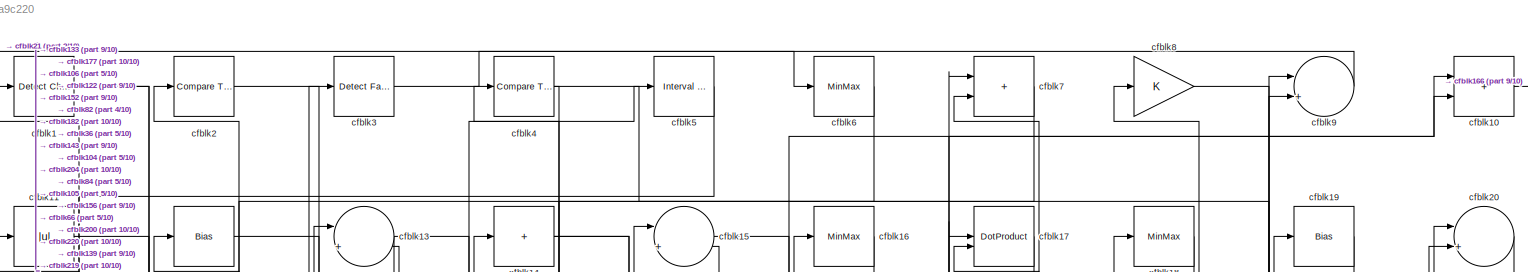
[diagram: root canvas - part 1/10, full width, top band]
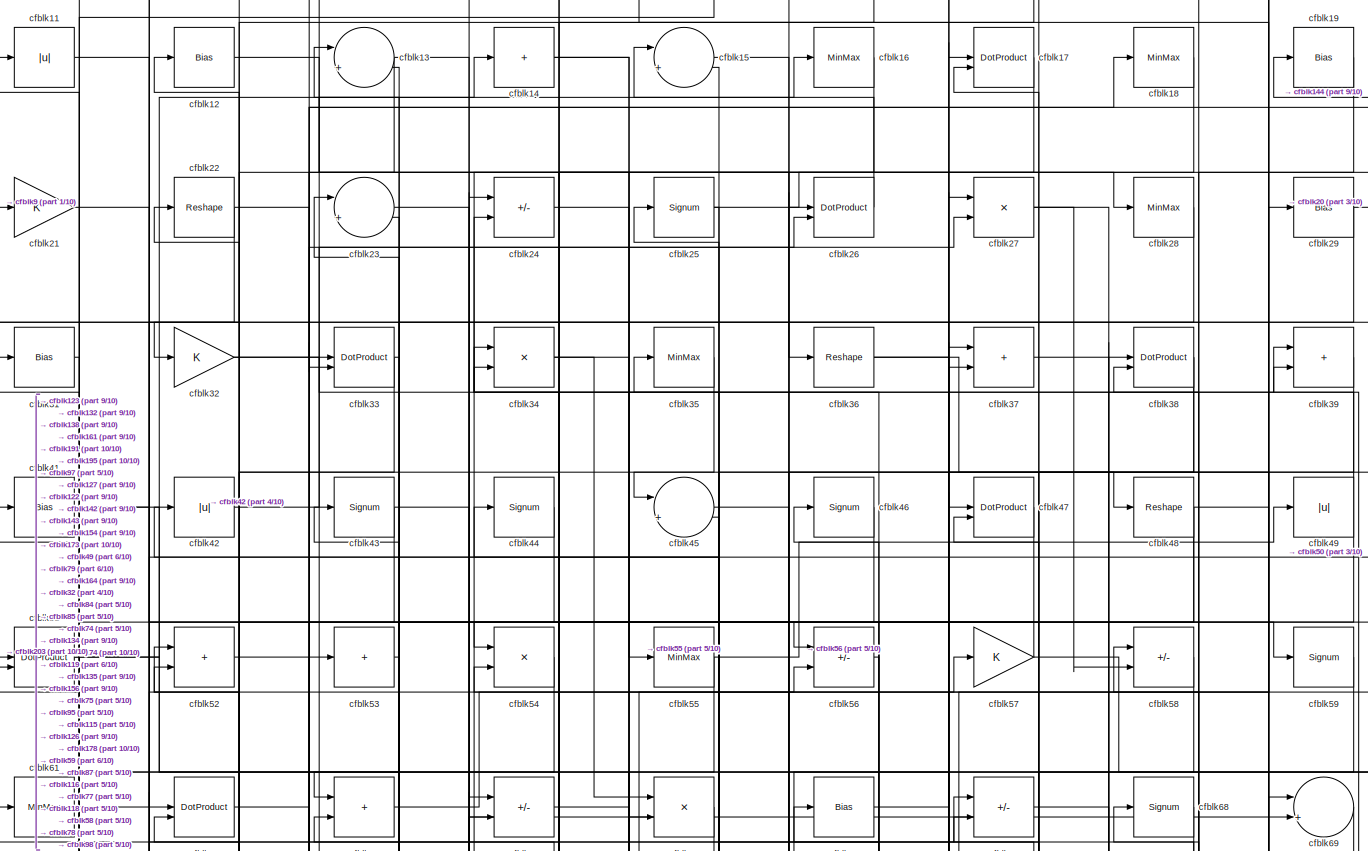
[diagram: root canvas - part 2/10, full width, top band]
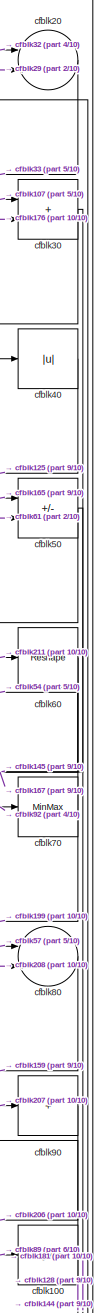
[diagram: root canvas - part 3/10, top right region]
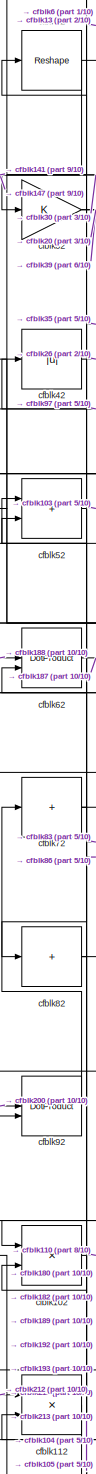
[diagram: root canvas - part 4/10, top left region]
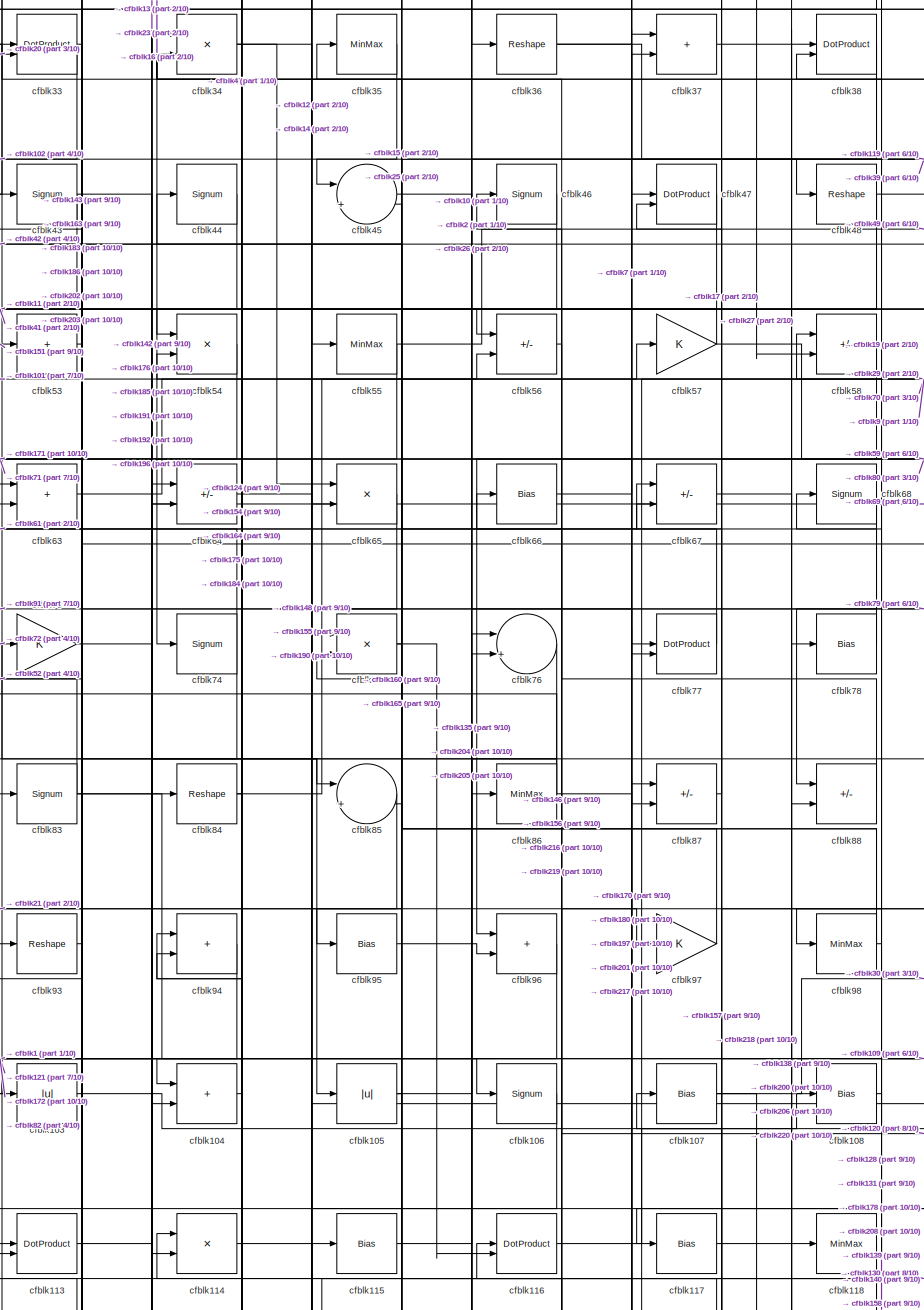
[diagram: root canvas - part 5/10, central region]
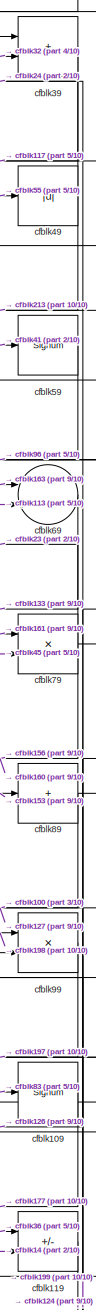
[diagram: root canvas - part 6/10, middle right region]
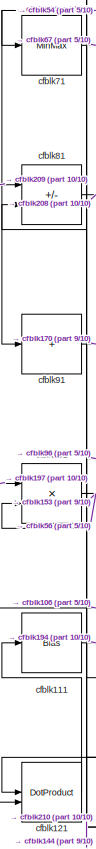
[diagram: root canvas - part 7/10, middle left region]
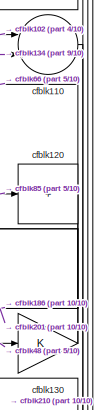
[diagram: root canvas - part 8/10, middle right region]
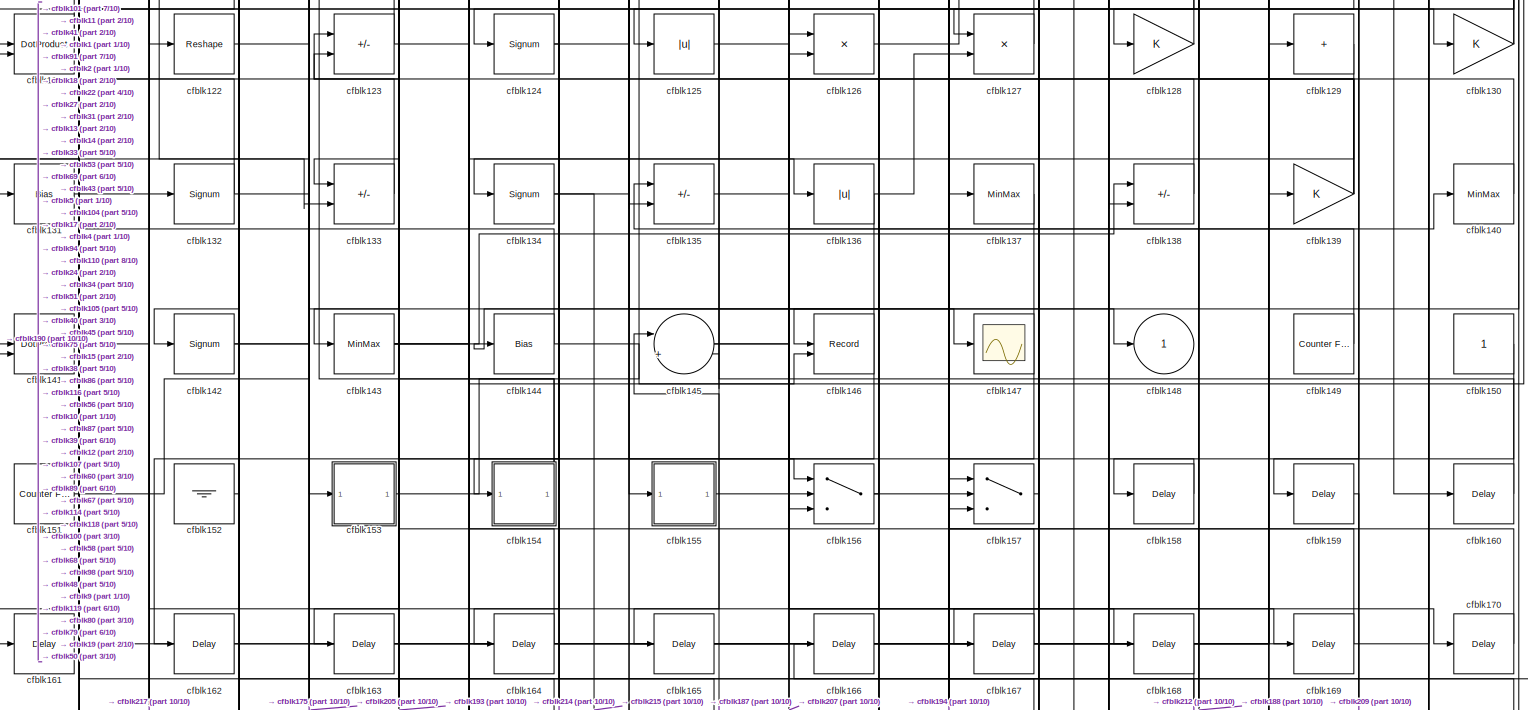
[diagram: root canvas - part 9/10, full width, middle band]
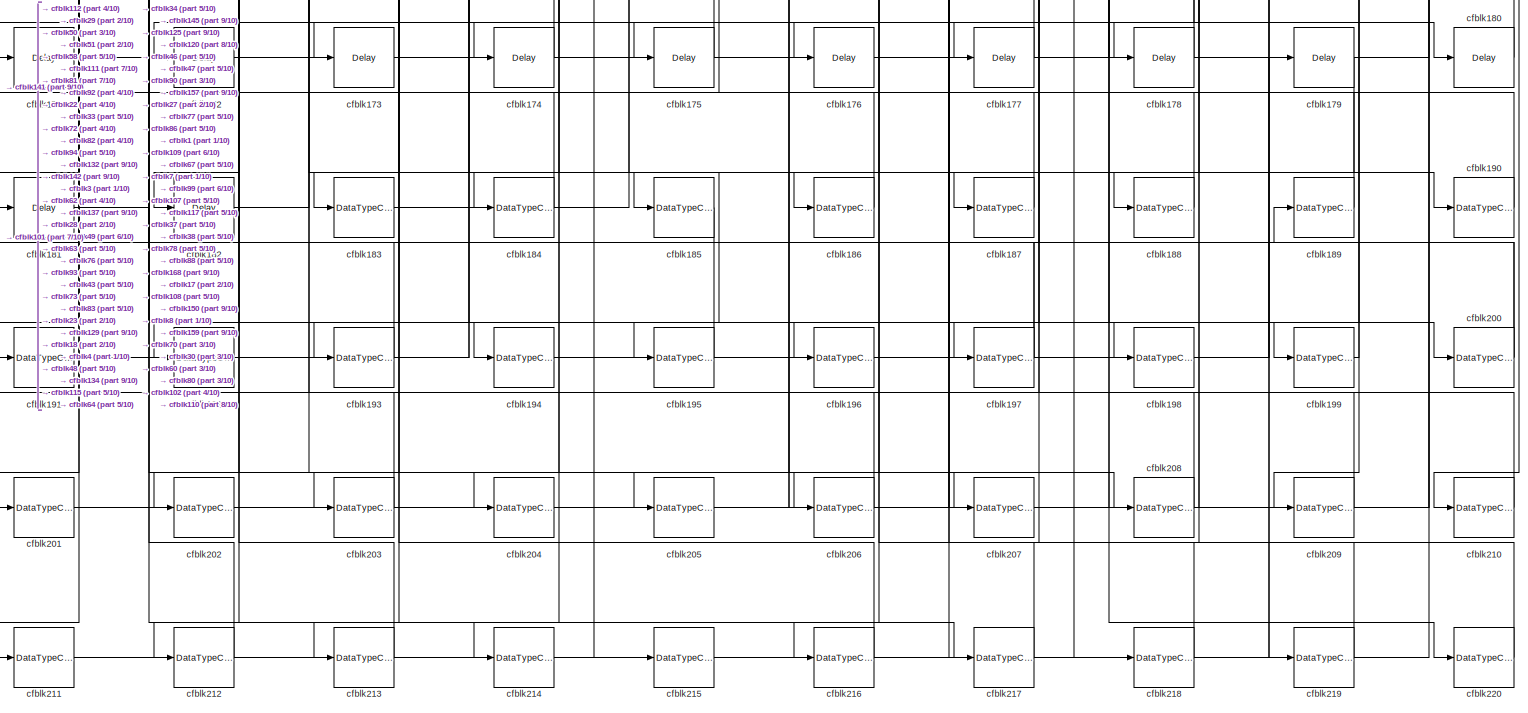
[diagram: root canvas - part 10/10, full width, bottom band]
MODEL slx_461f42a9c220
KIND model
CONFIG AbsTol = auto
CONFIG EnableMultiTasking = off
CONFIG FixedStep = auto
CONFIG MaxStep = auto
CONFIG MinStep = auto
CONFIG RelTol = 1e-3
CONFIG SampleTimeConstraint = Unconstrained
CONFIG SolverName = VariableStepAuto
CONFIG StartTime = 0.0
CONFIG StopTime = 10.0
BLOCK [Reference] cfblk1  REF=simulink/Logic and Bit
Operations/Detect
Change
  LibrarySourceBlock = hdlsllib/Logic and Bit\nOperations/Detect\nChange
  SourceBlock = simulink/Logic and Bit\nOperations/Detect\nChange
  SourceType = Detect Change
BLOCK [Sum] cfblk10
  IconShape = rectangular
BLOCK [Signum] cfblk100
BLOCK [Product] cfblk101
  Inputs = */
  RndMeth = Zero
  SaturateOnIntegerOverflow = on
BLOCK [Product] cfblk102
  Inputs = */
  RndMeth = Zero
  SaturateOnIntegerOverflow = on
BLOCK [Abs] cfblk103
  SaturateOnIntegerOverflow = off
BLOCK [Sum] cfblk104
  IconShape = rectangular
BLOCK [Abs] cfblk105
  SaturateOnIntegerOverflow = off
BLOCK [Signum] cfblk106
BLOCK [Bias] cfblk107
  Bias = 0.0
  SaturateOnIntegerOverflow = off
BLOCK [Bias] cfblk108
  Bias = 0.0
  SaturateOnIntegerOverflow = off
BLOCK [Signum] cfblk109
BLOCK [Abs] cfblk11
  SaturateOnIntegerOverflow = off
BLOCK [Sum] cfblk110
  Inputs = |++
BLOCK [Bias] cfblk111
  Bias = 0.0
  SaturateOnIntegerOverflow = off
BLOCK [Product] cfblk112
  Inputs = */
  RndMeth = Zero
  SaturateOnIntegerOverflow = on
BLOCK [DotProduct] cfblk113
  OutDataTypeStr = Inherit: Inherit via internal rule
BLOCK [Product] cfblk114
  Inputs = */
  RndMeth = Zero
  SaturateOnIntegerOverflow = on
BLOCK [Bias] cfblk115
  Bias = 0.0
  SaturateOnIntegerOverflow = off
BLOCK [DotProduct] cfblk116
  OutDataTypeStr = Inherit: Inherit via internal rule
BLOCK [Bias] cfblk117
  Bias = 0.0
  SaturateOnIntegerOverflow = off
BLOCK [MinMax] cfblk118
BLOCK [Sum] cfblk119
  IconShape = rectangular
  Inputs = +-
BLOCK [Bias] cfblk12
  Bias = 0.0
  SaturateOnIntegerOverflow = off
BLOCK [Sum] cfblk120
  IconShape = rectangular
  Inputs = +
BLOCK [DotProduct] cfblk121
  OutDataTypeStr = Inherit: Inherit via internal rule
BLOCK [Reshape] cfblk122
BLOCK [Sum] cfblk123
  IconShape = rectangular
  Inputs = +-
BLOCK [Signum] cfblk124
BLOCK [Abs] cfblk125
  SaturateOnIntegerOverflow = off
BLOCK [Product] cfblk126
  Inputs = */
  RndMeth = Zero
  SaturateOnIntegerOverflow = on
BLOCK [Product] cfblk127
  Inputs = */
  RndMeth = Zero
  SaturateOnIntegerOverflow = on
BLOCK [Gain] cfblk128
BLOCK [Sum] cfblk129
  IconShape = rectangular
  Inputs = +
BLOCK [Sum] cfblk13
  Inputs = |++
BLOCK [Gain] cfblk130
BLOCK [Bias] cfblk131
  Bias = 0.0
  SaturateOnIntegerOverflow = off
BLOCK [Signum] cfblk132
BLOCK [Sum] cfblk133
  IconShape = rectangular
  Inputs = +-
BLOCK [Signum] cfblk134
BLOCK [Sum] cfblk135
  IconShape = rectangular
  Inputs = +-
BLOCK [Abs] cfblk136
  SaturateOnIntegerOverflow = off
BLOCK [MinMax] cfblk137
BLOCK [Sum] cfblk138
  IconShape = rectangular
  Inputs = +-
BLOCK [Gain] cfblk139
BLOCK [Sum] cfblk14
  IconShape = rectangular
  Inputs = +
BLOCK [MinMax] cfblk140
BLOCK [DotProduct] cfblk141
  OutDataTypeStr = Inherit: Inherit via internal rule
BLOCK [Signum] cfblk142
BLOCK [MinMax] cfblk143
BLOCK [Bias] cfblk144
  Bias = 0.0
  SaturateOnIntegerOverflow = off
BLOCK [Sum] cfblk145
  Inputs = |++
BLOCK [Record] cfblk146
  CompatibilityTag = XY
  FileSettingsInternal = {"entries":[{"content":{"excelSettings":{"content":{},"type":"Streamout.ExcelSettings"}},"type":"Streamout.FileSettingStorage","uuid":""}],"packageUris":["http:\/\/schema.mathworks.com\/mf0\/streamout_blocks\/R2020a"],"version":"1.0"}
  Layout = [1 1]
  SignalsInternal = {"entries":[{"content":{"signals":[{"content":{"blockPath":[],"dimensions":[1],"domain":"","lineColor":"#a2142f","plots":[1],"port":1,"signalID":5132,"signalName":"XY Graph:1"},"type":"RecordBlkView.Signal","uuid":""},{"content":{"blockPath":[],"dimensions":[1],"domain":"","lineColor":"#139fff","plots":[1],"port":2,"signalID":5135,"signalName":"XY Graph:2"},"type":"RecordBlkView.Signal","uuid":""}...<+146ch>
  VisualizationBindings = {"xyplotplugin":{"info":[{"series":[{"bindingParametersList":[{"parameter":"X-Axis","signalID":5132,"signalName":"XY Graph:1"},{"parameter":"Y-Axis","signalID":5135,"signalName":"XY Graph:2"}],"seriesID":65422}],"subplotID":1}]}}
  st = -1
BLOCK [Scope] cfblk147
  Floating = off
  NumInputPorts = 1
  ScopeSpecificationString = Simulink.scopes.TimeScopeBlockCfg('CurrentConfiguration', extmgr.ConfigurationSet(extmgr.Configuration('Core','General UI',true),extmgr.Configuration('Core','Source UI',true),extmgr.Configuration('Sources','WiredSimulink',true,'DataLoggingVariableName','ScopeData2','DataLoggingSaveFormat','Array','DataLoggingLimitDataPoints',true,'DataLoggingDecimation','1'),extmgr.Configuration('Visuals','Time Do...<+868ch>
BLOCK [Outport] cfblk148
  VectorParamsAs1DForOutWhenUnconnected = off
BLOCK [Reference] cfblk149  REF=hdlsllib/Sources/Counter
Free-Running
  SourceBlock = hdlsllib/Sources/Counter\nFree-Running
  SourceType = Counter Free-Running
BLOCK [Sum] cfblk15
  Inputs = |++
BLOCK [Constant] cfblk150
  SampleTime = -1
BLOCK [Reference] cfblk151  REF=hdlsllib/Sources/Counter
Free-Running
  SourceBlock = hdlsllib/Sources/Counter\nFree-Running
  SourceType = Counter Free-Running
BLOCK [Ground] cfblk152
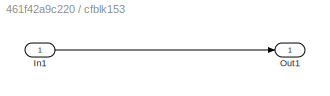
BLOCK [SubSystem] cfblk153
  LibrarySourceBlock = hdlsllib/Ports &\nSubsystems/Subsystem
BLOCK [Inport] cfblk153/In1
BLOCK [Outport] cfblk153/Out1
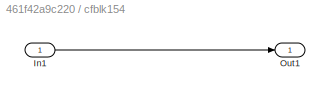
BLOCK [SubSystem] cfblk154
  LibrarySourceBlock = hdlsllib/Ports &\nSubsystems/Subsystem
BLOCK [Inport] cfblk154/In1
BLOCK [Outport] cfblk154/Out1
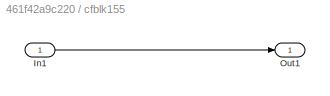
BLOCK [SubSystem] cfblk155
  LibrarySourceBlock = hdlsllib/Ports &\nSubsystems/Subsystem
BLOCK [Inport] cfblk155/In1
BLOCK [Outport] cfblk155/Out1
BLOCK [Switch] cfblk156
  InputSameDT = off
  SaturateOnIntegerOverflow = off
BLOCK [Switch] cfblk157
  InputSameDT = off
  SaturateOnIntegerOverflow = off
BLOCK [Delay] cfblk158
  InputPortMap = u0
  SampleTime = 1
BLOCK [Delay] cfblk159
  InputPortMap = u0
  SampleTime = 1
BLOCK [MinMax] cfblk16
BLOCK [Delay] cfblk160
  InputPortMap = u0
  SampleTime = 1
BLOCK [Delay] cfblk161
  InputPortMap = u0
  SampleTime = 1
BLOCK [Delay] cfblk162
  InputPortMap = u0
  SampleTime = 1
BLOCK [Delay] cfblk163
  InputPortMap = u0
  SampleTime = 1
BLOCK [Delay] cfblk164
  InputPortMap = u0
  SampleTime = 1
BLOCK [Delay] cfblk165
  InputPortMap = u0
  SampleTime = 1
BLOCK [Delay] cfblk166
  InputPortMap = u0
  SampleTime = 1
BLOCK [Delay] cfblk167
  InputPortMap = u0
  SampleTime = 1
BLOCK [Delay] cfblk168
  InputPortMap = u0
  SampleTime = 1
BLOCK [Delay] cfblk169
  InputPortMap = u0
  SampleTime = 1
BLOCK [DotProduct] cfblk17
  OutDataTypeStr = Inherit: Inherit via internal rule
BLOCK [Delay] cfblk170
  InputPortMap = u0
  SampleTime = 1
BLOCK [Delay] cfblk171
  InputPortMap = u0
  SampleTime = 1
BLOCK [Delay] cfblk172
  InputPortMap = u0
  SampleTime = 1
BLOCK [Delay] cfblk173
  InputPortMap = u0
  SampleTime = 1
BLOCK [Delay] cfblk174
  InputPortMap = u0
  SampleTime = 1
BLOCK [Delay] cfblk175
  InputPortMap = u0
  SampleTime = 1
BLOCK [Delay] cfblk176
  InputPortMap = u0
  SampleTime = 1
BLOCK [Delay] cfblk177
  InputPortMap = u0
  SampleTime = 1
BLOCK [Delay] cfblk178
  InputPortMap = u0
  SampleTime = 1
BLOCK [Delay] cfblk179
  InputPortMap = u0
  SampleTime = 1
BLOCK [MinMax] cfblk18
BLOCK [Delay] cfblk180
  InputPortMap = u0
  SampleTime = 1
BLOCK [Delay] cfblk181
  InputPortMap = u0
  SampleTime = 1
BLOCK [Delay] cfblk182
  InputPortMap = u0
  SampleTime = 1
BLOCK [DataTypeConversion] cfblk183
  OutDataTypeStr = uint8
  RndMeth = Floor
  SaturateOnIntegerOverflow = off
BLOCK [DataTypeConversion] cfblk184
  OutDataTypeStr = uint8
  RndMeth = Floor
  SaturateOnIntegerOverflow = off
BLOCK [DataTypeConversion] cfblk185
  OutDataTypeStr = uint8
  RndMeth = Floor
  SaturateOnIntegerOverflow = off
BLOCK [DataTypeConversion] cfblk186
  OutDataTypeStr = uint8
  RndMeth = Floor
  SaturateOnIntegerOverflow = off
BLOCK [DataTypeConversion] cfblk187
  OutDataTypeStr = uint8
  RndMeth = Floor
  SaturateOnIntegerOverflow = off
BLOCK [DataTypeConversion] cfblk188
  OutDataTypeStr = uint8
  RndMeth = Floor
  SaturateOnIntegerOverflow = off
BLOCK [DataTypeConversion] cfblk189
  OutDataTypeStr = uint8
  RndMeth = Floor
  SaturateOnIntegerOverflow = off
BLOCK [Bias] cfblk19
  Bias = 0.0
  SaturateOnIntegerOverflow = off
BLOCK [DataTypeConversion] cfblk190
  OutDataTypeStr = uint8
  RndMeth = Floor
  SaturateOnIntegerOverflow = off
BLOCK [DataTypeConversion] cfblk191
  OutDataTypeStr = uint8
  RndMeth = Floor
  SaturateOnIntegerOverflow = off
BLOCK [DataTypeConversion] cfblk192
  OutDataTypeStr = uint8
  RndMeth = Floor
  SaturateOnIntegerOverflow = off
BLOCK [DataTypeConversion] cfblk193
  OutDataTypeStr = uint8
  RndMeth = Floor
  SaturateOnIntegerOverflow = off
BLOCK [DataTypeConversion] cfblk194
  OutDataTypeStr = uint8
  RndMeth = Floor
  SaturateOnIntegerOverflow = off
BLOCK [DataTypeConversion] cfblk195
  OutDataTypeStr = uint8
  RndMeth = Floor
  SaturateOnIntegerOverflow = off
BLOCK [DataTypeConversion] cfblk196
  OutDataTypeStr = uint8
  RndMeth = Floor
  SaturateOnIntegerOverflow = off
BLOCK [DataTypeConversion] cfblk197
  RndMeth = Floor
  SaturateOnIntegerOverflow = off
BLOCK [DataTypeConversion] cfblk198
  OutDataTypeStr = uint8
  RndMeth = Floor
  SaturateOnIntegerOverflow = off
BLOCK [DataTypeConversion] cfblk199
  OutDataTypeStr = uint8
  RndMeth = Floor
  SaturateOnIntegerOverflow = off
BLOCK [Reference] cfblk2  REF=hdlsllib/Logic and Bit
Operations/Compare
To Constant
  SourceBlock = hdlsllib/Logic and Bit\nOperations/Compare\nTo Constant
  SourceType = Compare To Constant
BLOCK [Sum] cfblk20
  Inputs = |++
BLOCK [DataTypeConversion] cfblk200
  RndMeth = Floor
  SaturateOnIntegerOverflow = off
BLOCK [DataTypeConversion] cfblk201
  OutDataTypeStr = uint8
  RndMeth = Floor
  SaturateOnIntegerOverflow = off
BLOCK [DataTypeConversion] cfblk202
  OutDataTypeStr = uint8
  RndMeth = Floor
  SaturateOnIntegerOverflow = off
BLOCK [DataTypeConversion] cfblk203
  OutDataTypeStr = uint8
  RndMeth = Floor
  SaturateOnIntegerOverflow = off
BLOCK [DataTypeConversion] cfblk204
  OutDataTypeStr = uint8
  RndMeth = Floor
  SaturateOnIntegerOverflow = off
BLOCK [DataTypeConversion] cfblk205
  OutDataTypeStr = uint8
  RndMeth = Floor
  SaturateOnIntegerOverflow = off
BLOCK [DataTypeConversion] cfblk206
  RndMeth = Floor
  SaturateOnIntegerOverflow = off
BLOCK [DataTypeConversion] cfblk207
  OutDataTypeStr = uint8
  RndMeth = Floor
  SaturateOnIntegerOverflow = off
BLOCK [DataTypeConversion] cfblk208
  RndMeth = Floor
  SaturateOnIntegerOverflow = off
BLOCK [DataTypeConversion] cfblk209
  OutDataTypeStr = uint8
  RndMeth = Floor
  SaturateOnIntegerOverflow = off
BLOCK [Gain] cfblk21
BLOCK [DataTypeConversion] cfblk210
  OutDataTypeStr = uint8
  RndMeth = Floor
  SaturateOnIntegerOverflow = off
BLOCK [DataTypeConversion] cfblk211
  OutDataTypeStr = uint8
  RndMeth = Floor
  SaturateOnIntegerOverflow = off
BLOCK [DataTypeConversion] cfblk212
  OutDataTypeStr = uint8
  RndMeth = Floor
  SaturateOnIntegerOverflow = off
BLOCK [DataTypeConversion] cfblk213
  OutDataTypeStr = uint8
  RndMeth = Floor
  SaturateOnIntegerOverflow = off
BLOCK [DataTypeConversion] cfblk214
  OutDataTypeStr = uint8
  RndMeth = Floor
  SaturateOnIntegerOverflow = off
BLOCK [DataTypeConversion] cfblk215
  OutDataTypeStr = uint8
  RndMeth = Floor
  SaturateOnIntegerOverflow = off
BLOCK [DataTypeConversion] cfblk216
  OutDataTypeStr = uint8
  RndMeth = Floor
  SaturateOnIntegerOverflow = off
BLOCK [DataTypeConversion] cfblk217
  OutDataTypeStr = uint8
  RndMeth = Floor
  SaturateOnIntegerOverflow = off
BLOCK [DataTypeConversion] cfblk218
  OutDataTypeStr = uint8
  RndMeth = Floor
  SaturateOnIntegerOverflow = off
BLOCK [DataTypeConversion] cfblk219
  OutDataTypeStr = uint8
  RndMeth = Floor
  SaturateOnIntegerOverflow = off
BLOCK [Reshape] cfblk22
BLOCK [DataTypeConversion] cfblk220
  OutDataTypeStr = uint8
  RndMeth = Floor
  SaturateOnIntegerOverflow = off
BLOCK [Sum] cfblk23
  Inputs = |++
BLOCK [Sum] cfblk24
  IconShape = rectangular
  Inputs = +-
BLOCK [Signum] cfblk25
BLOCK [DotProduct] cfblk26
  OutDataTypeStr = Inherit: Inherit via internal rule
BLOCK [Product] cfblk27
  Inputs = */
  RndMeth = Zero
  SaturateOnIntegerOverflow = on
BLOCK [MinMax] cfblk28
BLOCK [Bias] cfblk29
  Bias = 0.0
  SaturateOnIntegerOverflow = off
BLOCK [Reference] cfblk3  REF=hdlsllib/Logic and Bit
Operations/Detect Fall
Nonpositive
  SourceBlock = hdlsllib/Logic and Bit\nOperations/Detect Fall\nNonpositive
  SourceType = Detect Fall Nonpositive
BLOCK [Sum] cfblk30
  IconShape = rectangular
BLOCK [Bias] cfblk31
  Bias = 0.0
  SaturateOnIntegerOverflow = off
BLOCK [Gain] cfblk32
BLOCK [DotProduct] cfblk33
  OutDataTypeStr = Inherit: Inherit via internal rule
BLOCK [Product] cfblk34
  Inputs = */
  RndMeth = Zero
  SaturateOnIntegerOverflow = on
BLOCK [MinMax] cfblk35
BLOCK [Reshape] cfblk36
BLOCK [Sum] cfblk37
  IconShape = rectangular
BLOCK [DotProduct] cfblk38
  OutDataTypeStr = Inherit: Inherit via internal rule
BLOCK [Sum] cfblk39
  IconShape = rectangular
BLOCK [Reference] cfblk4  REF=hdlsllib/Logic and Bit
Operations/Compare
To Constant
  SourceBlock = hdlsllib/Logic and Bit\nOperations/Compare\nTo Constant
  SourceType = Compare To Constant
BLOCK [Abs] cfblk40
  SaturateOnIntegerOverflow = off
BLOCK [Bias] cfblk41
  Bias = 0.0
  SaturateOnIntegerOverflow = off
BLOCK [Abs] cfblk42
  SaturateOnIntegerOverflow = off
BLOCK [Signum] cfblk43
BLOCK [Signum] cfblk44
BLOCK [Sum] cfblk45
  Inputs = |++
BLOCK [Signum] cfblk46
BLOCK [DotProduct] cfblk47
  OutDataTypeStr = Inherit: Inherit via internal rule
BLOCK [Reshape] cfblk48
BLOCK [Abs] cfblk49
  SaturateOnIntegerOverflow = off
BLOCK [Reference] cfblk5  REF=hdlsllib/Logic and Bit
Operations/Interval Test
  SourceBlock = hdlsllib/Logic and Bit\nOperations/Interval Test
  SourceType = Interval Test
BLOCK [Sum] cfblk50
  IconShape = rectangular
  Inputs = +-
BLOCK [DotProduct] cfblk51
  OutDataTypeStr = Inherit: Inherit via internal rule
BLOCK [Sum] cfblk52
  IconShape = rectangular
BLOCK [Sum] cfblk53
  IconShape = rectangular
  Inputs = +
BLOCK [Product] cfblk54
  Inputs = */
  RndMeth = Zero
  SaturateOnIntegerOverflow = on
BLOCK [MinMax] cfblk55
BLOCK [Sum] cfblk56
  IconShape = rectangular
  Inputs = +-
BLOCK [Gain] cfblk57
BLOCK [Sum] cfblk58
  IconShape = rectangular
  Inputs = +-
BLOCK [Signum] cfblk59
BLOCK [MinMax] cfblk6
BLOCK [Reshape] cfblk60
BLOCK [MinMax] cfblk61
BLOCK [DotProduct] cfblk62
  OutDataTypeStr = Inherit: Inherit via internal rule
BLOCK [Sum] cfblk63
  IconShape = rectangular
BLOCK [Sum] cfblk64
  IconShape = rectangular
  Inputs = +-
BLOCK [Product] cfblk65
  Inputs = */
  RndMeth = Zero
  SaturateOnIntegerOverflow = on
BLOCK [Bias] cfblk66
  Bias = 0.0
  SaturateOnIntegerOverflow = off
BLOCK [Sum] cfblk67
  IconShape = rectangular
  Inputs = +-
BLOCK [Signum] cfblk68
BLOCK [Sum] cfblk69
  Inputs = |++
BLOCK [Sum] cfblk7
  IconShape = rectangular
BLOCK [MinMax] cfblk70
BLOCK [MinMax] cfblk71
BLOCK [Sum] cfblk72
  IconShape = rectangular
  Inputs = +
BLOCK [Gain] cfblk73
BLOCK [Signum] cfblk74
BLOCK [Product] cfblk75
  Inputs = */
  RndMeth = Zero
  SaturateOnIntegerOverflow = on
BLOCK [Sum] cfblk76
  Inputs = |++
BLOCK [DotProduct] cfblk77
  OutDataTypeStr = Inherit: Inherit via internal rule
BLOCK [Bias] cfblk78
  Bias = 0.0
  SaturateOnIntegerOverflow = off
BLOCK [Product] cfblk79
  Inputs = */
  RndMeth = Zero
  SaturateOnIntegerOverflow = on
BLOCK [Gain] cfblk8
BLOCK [Sum] cfblk80
  Inputs = |++
BLOCK [Sum] cfblk81
  IconShape = rectangular
  Inputs = +-
BLOCK [Sum] cfblk82
  IconShape = rectangular
  Inputs = +
BLOCK [Signum] cfblk83
BLOCK [Reshape] cfblk84
BLOCK [Sum] cfblk85
  Inputs = |++
BLOCK [MinMax] cfblk86
BLOCK [Sum] cfblk87
  IconShape = rectangular
  Inputs = +-
BLOCK [Sum] cfblk88
  IconShape = rectangular
  Inputs = +-
BLOCK [Sum] cfblk89
  IconShape = rectangular
  Inputs = +
BLOCK [Sum] cfblk9
  Inputs = |++
BLOCK [Sum] cfblk90
  IconShape = rectangular
  Inputs = +
BLOCK [Sum] cfblk91
  IconShape = rectangular
  Inputs = +
BLOCK [DotProduct] cfblk92
  OutDataTypeStr = Inherit: Inherit via internal rule
BLOCK [Reshape] cfblk93
BLOCK [Sum] cfblk94
  IconShape = rectangular
BLOCK [Bias] cfblk95
  Bias = 0.0
  SaturateOnIntegerOverflow = off
BLOCK [Sum] cfblk96
  IconShape = rectangular
BLOCK [Gain] cfblk97
BLOCK [MinMax] cfblk98
BLOCK [Product] cfblk99
  Inputs = */
  RndMeth = Zero
  SaturateOnIntegerOverflow = on
NET cfblk100:1 -> cfblk128:1, cfblk40:1
NET cfblk101:1 -> cfblk153:1, cfblk56:2
LINE cfblk102:1 -> cfblk110:1
LINE cfblk103:1 -> cfblk108:1
LINE cfblk104:1 -> cfblk164:1
NET cfblk105:1 -> cfblk10:2, cfblk165:1
LINE cfblk106:1 -> cfblk121:2
NET cfblk107:1 -> cfblk218:1, cfblk30:1
LINE cfblk108:1 -> cfblk178:1
LINE cfblk109:1 -> cfblk177:1
LINE cfblk10:1 -> cfblk166:1
LINE cfblk110:1 -> cfblk210:1
LINE cfblk111:1 -> cfblk194:1
LINE cfblk112:1 -> cfblk211:1
LINE cfblk113:1 -> cfblk69:2
LINE cfblk114:1 -> cfblk148:1
LINE cfblk115:1 -> cfblk26:1
LINE cfblk116:1 -> cfblk29:1
LINE cfblk117:1 -> cfblk220:1
LINE cfblk118:1 -> cfblk131:1
LINE cfblk119:1 -> cfblk124:1
LINE cfblk11:1 -> cfblk56:1
NET cfblk120:1 -> cfblk186:1, cfblk201:1, cfblk66:1
LINE cfblk121:1 -> cfblk111:1
LINE cfblk122:1 -> cfblk27:2
NET cfblk123:1 -> cfblk136:1, cfblk31:1
NET cfblk124:1 -> cfblk75:1, cfblk94:1
LINE cfblk125:1 -> cfblk207:1
LINE cfblk126:1 -> cfblk39:1
LINE cfblk127:1 -> cfblk12:1
LINE cfblk128:1 -> cfblk114:1
LINE cfblk129:1 -> cfblk214:1
LINE cfblk12:1 -> cfblk55:1
NET cfblk130:1 -> cfblk120:1, cfblk85:2
LINE cfblk131:1 -> cfblk132:1
NET cfblk132:1 -> cfblk205:1, cfblk41:1
LINE cfblk133:1 -> cfblk123:1
NET cfblk134:1 -> cfblk110:2, cfblk215:1
LINE cfblk135:1 -> cfblk86:1
NET cfblk136:1 -> cfblk127:2, cfblk162:1
LINE cfblk137:1 -> cfblk193:1
LINE cfblk138:1 -> cfblk11:1
NET cfblk139:1 -> cfblk58:1, cfblk75:2, cfblk94:2
NET cfblk13:1 -> cfblk32:1, cfblk85:1
LINE cfblk140:1 -> cfblk68:1
LINE cfblk141:1 -> cfblk217:1
NET cfblk142:1 -> cfblk175:1, cfblk18:1
NET cfblk143:1 -> cfblk138:1, cfblk13:2, cfblk146:2, cfblk5:1
NET cfblk144:1 -> cfblk101:2, cfblk19:1
NET cfblk145:1 -> cfblk168:1, cfblk169:1
LINE cfblk149:1 -> cfblk135:1
NET cfblk14:1 -> cfblk119:2, cfblk77:2
LINE cfblk150:1 -> cfblk188:1
LINE cfblk151:1 -> cfblk53:1
LINE cfblk152:1 -> cfblk2:1
LINE cfblk153/In1:1 -> cfblk153/Out1:1
LINE cfblk153:1 -> cfblk89:1
LINE cfblk154/In1:1 -> cfblk154/Out1:1
NET cfblk154:1 -> cfblk13:1, cfblk14:1
LINE cfblk155/In1:1 -> cfblk155/Out1:1
LINE cfblk155:1 -> cfblk140:1
NET cfblk156:1 -> cfblk10:1, cfblk116:1
LINE cfblk157:1 -> cfblk107:1
LINE cfblk158:1 -> cfblk157:2
LINE cfblk159:1 -> cfblk209:1
LINE cfblk15:1 -> cfblk126:1
LINE cfblk160:1 -> cfblk45:2
LINE cfblk161:1 -> cfblk79:1
LINE cfblk162:1 -> cfblk126:2
LINE cfblk163:1 -> cfblk69:1
LINE cfblk164:1 -> cfblk24:1
LINE cfblk165:1 -> cfblk50:1
LINE cfblk166:1 -> cfblk9:1
LINE cfblk167:1 -> cfblk157:1
LINE cfblk168:1 -> cfblk212:1
LINE cfblk169:1 -> cfblk123:2
LINE cfblk16:1 -> cfblk74:1
LINE cfblk170:1 -> cfblk87:1
LINE cfblk171:1 -> cfblk38:1
LINE cfblk172:1 -> cfblk88:2
LINE cfblk173:1 -> cfblk27:1
LINE cfblk174:1 -> cfblk23:1
LINE cfblk175:1 -> cfblk34:2
LINE cfblk176:1 -> cfblk30:2
LINE cfblk177:1 -> cfblk1:1
LINE cfblk178:1 -> cfblk17:1
LINE cfblk179:1 -> cfblk195:1
LINE cfblk17:1 -> cfblk134:1
LINE cfblk180:1 -> cfblk102:2
LINE cfblk181:1 -> cfblk198:1
LINE cfblk182:1 -> cfblk3:1
LINE cfblk183:1 -> cfblk115:1
LINE cfblk184:1 -> cfblk93:1
LINE cfblk185:1 -> cfblk189:1
LINE cfblk186:1 -> cfblk73:1
LINE cfblk187:1 -> cfblk145:1
LINE cfblk188:1 -> cfblk62:1
LINE cfblk189:1 -> cfblk62:2
LINE cfblk18:1 -> cfblk174:1
LINE cfblk190:1 -> cfblk141:1
LINE cfblk191:1 -> cfblk64:1
LINE cfblk192:1 -> cfblk64:2
LINE cfblk193:1 -> cfblk22:1
LINE cfblk194:1 -> cfblk137:1
LINE cfblk195:1 -> cfblk51:2
LINE cfblk196:1 -> cfblk179:1
NET cfblk197:1 -> cfblk101:1, cfblk77:1
LINE cfblk198:1 -> cfblk99:1
LINE cfblk199:1 -> cfblk99:2
LINE cfblk19:1 -> cfblk98:1
NET cfblk1:1 -> cfblk106:1, cfblk122:1
NET cfblk200:1 -> cfblk7:2, cfblk92:1
LINE cfblk201:1 -> cfblk37:1
LINE cfblk202:1 -> cfblk37:2
LINE cfblk203:1 -> cfblk51:1
LINE cfblk204:1 -> cfblk76:1
LINE cfblk205:1 -> cfblk76:2
NET cfblk206:1 -> cfblk33:1, cfblk78:1
LINE cfblk207:1 -> cfblk90:1
NET cfblk208:1 -> cfblk38:2, cfblk67:2, cfblk80:2
LINE cfblk209:1 -> cfblk81:1
LINE cfblk20:1 -> cfblk33:2
LINE cfblk210:1 -> cfblk81:2
LINE cfblk211:1 -> cfblk60:1
LINE cfblk212:1 -> cfblk112:1
LINE cfblk213:1 -> cfblk112:2
LINE cfblk214:1 -> cfblk157:3
LINE cfblk215:1 -> cfblk129:1
LINE cfblk216:1 -> cfblk63:2
LINE cfblk217:1 -> cfblk47:1
LINE cfblk218:1 -> cfblk47:2
LINE cfblk219:1 -> cfblk46:1
LINE cfblk21:1 -> cfblk97:1
LINE cfblk220:1 -> cfblk8:1
NET cfblk22:1 -> cfblk141:2, cfblk147:1
LINE cfblk23:1 -> cfblk84:1
LINE cfblk24:1 -> cfblk156:1
NET cfblk25:1 -> cfblk28:1, cfblk95:1
LINE cfblk26:1 -> cfblk15:1
NET cfblk27:1 -> cfblk118:1, cfblk58:2
LINE cfblk28:1 -> cfblk173:1
NET cfblk29:1 -> cfblk191:1, cfblk20:2
LINE cfblk2:1 -> cfblk36:1
NET cfblk30:1 -> cfblk70:1, cfblk92:2
LINE cfblk31:1 -> cfblk161:1
NET cfblk32:1 -> cfblk20:1, cfblk39:2
NET cfblk33:1 -> cfblk163:1, cfblk202:1
NET cfblk34:1 -> cfblk155:1, cfblk65:1
LINE cfblk35:1 -> cfblk102:1
NET cfblk36:1 -> cfblk119:1, cfblk48:1
LINE cfblk37:1 -> cfblk200:1
NET cfblk38:1 -> cfblk156:3, cfblk45:1
LINE cfblk39:1 -> cfblk117:1
LINE cfblk3:1 -> cfblk6:1
LINE cfblk40:1 -> cfblk125:1
NET cfblk41:1 -> cfblk59:1, cfblk87:2
LINE cfblk42:1 -> cfblk26:2
NET cfblk43:1 -> cfblk142:1, cfblk176:1
LINE cfblk44:1 -> cfblk63:1
LINE cfblk45:1 -> cfblk79:2
LINE cfblk46:1 -> cfblk113:2
LINE cfblk47:1 -> cfblk216:1
NET cfblk48:1 -> cfblk130:1, cfblk154:1, cfblk184:1
NET cfblk49:1 -> cfblk213:1, cfblk24:2
NET cfblk4:1 -> cfblk139:1, cfblk204:1
NET cfblk50:1 -> cfblk144:1, cfblk181:1
NET cfblk51:1 -> cfblk135:2, cfblk16:1
LINE cfblk52:1 -> cfblk103:1
LINE cfblk53:1 -> cfblk143:1
LINE cfblk54:1 -> cfblk71:1
NET cfblk55:1 -> cfblk49:1, cfblk65:2
LINE cfblk56:1 -> cfblk146:1
NET cfblk57:1 -> cfblk54:1, cfblk80:1
LINE cfblk58:1 -> cfblk171:1
LINE cfblk59:1 -> cfblk96:1
LINE cfblk5:1 -> cfblk133:2
NET cfblk60:1 -> cfblk145:2, cfblk167:1
LINE cfblk61:1 -> cfblk50:2
LINE cfblk62:1 -> cfblk187:1
LINE cfblk63:1 -> cfblk57:1
LINE cfblk64:1 -> cfblk190:1
LINE cfblk65:1 -> cfblk91:1
LINE cfblk66:1 -> cfblk7:1
LINE cfblk67:1 -> cfblk138:2
LINE cfblk68:1 -> cfblk88:1
LINE cfblk69:1 -> cfblk133:1
LINE cfblk6:1 -> cfblk82:1
NET cfblk70:1 -> cfblk199:1, cfblk54:2
LINE cfblk71:1 -> cfblk67:1
NET cfblk72:1 -> cfblk105:1, cfblk192:1
LINE cfblk73:1 -> cfblk185:1
NET cfblk74:1 -> cfblk114:2, cfblk43:1
NET cfblk75:1 -> cfblk116:2, cfblk25:1
LINE cfblk76:1 -> cfblk203:1
LINE cfblk77:1 -> cfblk61:1
LINE cfblk78:1 -> cfblk15:2
NET cfblk79:1 -> cfblk156:2, cfblk160:1, cfblk23:2
LINE cfblk7:1 -> cfblk104:1
LINE cfblk80:1 -> cfblk159:1
LINE cfblk81:1 -> cfblk208:1
NET cfblk82:1 -> cfblk104:2, cfblk182:1
NET cfblk83:1 -> cfblk109:1, cfblk196:1, cfblk52:1
NET cfblk84:1 -> cfblk4:1, cfblk9:2
LINE cfblk85:1 -> cfblk113:1
NET cfblk86:1 -> cfblk180:1, cfblk52:2, cfblk83:1
LINE cfblk87:1 -> cfblk17:2
LINE cfblk88:1 -> cfblk35:1
NET cfblk89:1 -> cfblk100:1, cfblk127:1
LINE cfblk8:1 -> cfblk219:1
LINE cfblk90:1 -> cfblk206:1
LINE cfblk91:1 -> cfblk170:1
LINE cfblk92:1 -> cfblk72:1
LINE cfblk93:1 -> cfblk183:1
LINE cfblk94:1 -> cfblk172:1
LINE cfblk95:1 -> cfblk96:2
LINE cfblk96:1 -> cfblk121:1
LINE cfblk97:1 -> cfblk42:1
NET cfblk98:1 -> cfblk158:1, cfblk34:1, cfblk44:1
LINE cfblk99:1 -> cfblk197:1
LINE cfblk9:1 -> cfblk21:1
note: NET lines group one-source signal fan-out (src -> all destinations, sorted); 1:1 wires keep LINE
